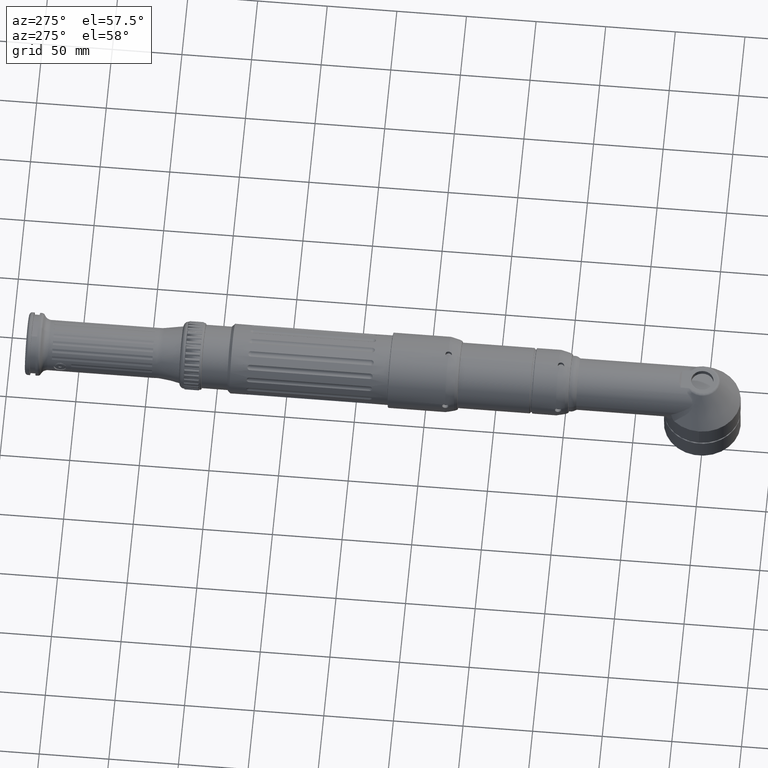
[diagram: clean part render]
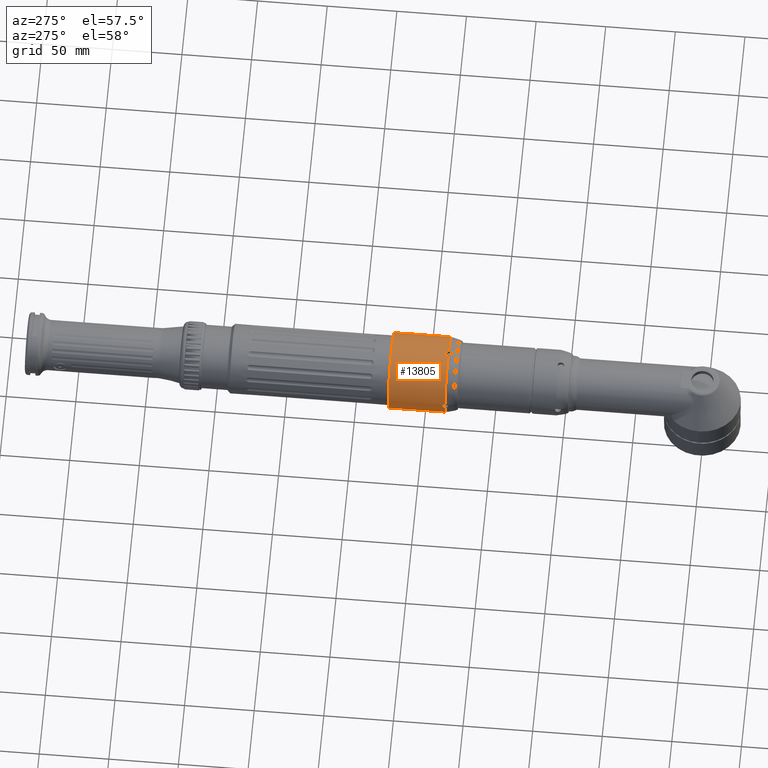
[diagram: same view with one face highlighted and labeled with its STEP entity id]
A machine part, auxiliary view. The second image highlights one B-rep face of the part: STEP entity #13805.
In plain terms, the highlighted cylindrical surface (bore or boss wall) has radius 27 mm, axis along (0, 1, -0).
Its self-contained STEP definition (entity closure, byte-faithful):
#1785=CYLINDRICAL_SURFACE('',#15489,27.);
#2100=FACE_BOUND('',#4450,.T.);
#3383=FACE_OUTER_BOUND('',#4449,.T.);
#4449=EDGE_LOOP('',(#11644));
#4450=EDGE_LOOP('',(#11645,#11646,#11647,#11648,#11649,#11650,#11651,#11652,
#11653,#11654,#11655,#11656));
#5336=CIRCLE('',#15478,27.);
#5342=CIRCLE('',#15490,27.);
#5343=CIRCLE('',#15491,27.);
#5344=CIRCLE('',#15492,27.);
#5345=CIRCLE('',#15493,27.);
#5502=B_SPLINE_CURVE_WITH_KNOTS('',3,(#25416,#25417,#25418,#25419,#25420,
#25421,#25422,#25423,#25424,#25425),.UNSPECIFIED.,.F.,.F.,(4,2,2,2,4),(1.04019628971994,
1.12687923638127,1.21356218304259,1.30024528466792,1.36848005378065),
 .UNSPECIFIED.);
#5503=B_SPLINE_CURVE_WITH_KNOTS('',3,(#25427,#25428,#25429,#25430,#25431,
#25432,#25433,#25434,#25435,#25436),.UNSPECIFIED.,.F.,.F.,(4,2,2,2,4),(0.711912525659239,
0.780147294771962,0.866830396397295,0.953513343058619,1.04019628971994),
 .UNSPECIFIED.);
#5505=B_SPLINE_CURVE_WITH_KNOTS('',3,(#25464,#25465,#25466,#25467,#25468,
#25469,#25470,#25471,#25472,#25473),.UNSPECIFIED.,.F.,.F.,(4,2,2,2,4),(1.04019628971994,
1.12687923638127,1.21356218304259,1.30024528466792,1.36848005378065),
 .UNSPECIFIED.);
#5506=B_SPLINE_CURVE_WITH_KNOTS('',3,(#25477,#25478,#25479,#25480,#25481,
#25482,#25483,#25484,#25485,#25486),.UNSPECIFIED.,.F.,.F.,(4,2,2,2,4),(0.711912525659239,
0.780147294771962,0.866830396397295,0.953513343058619,1.04019628971994),
 .UNSPECIFIED.);
#5507=B_SPLINE_CURVE_WITH_KNOTS('',3,(#25488,#25489,#25490,#25491,#25492,
#25493,#25494,#25495,#25496,#25497),.UNSPECIFIED.,.F.,.F.,(4,2,2,2,4),(1.04019628971994,
1.12687923638127,1.21356218304259,1.30024528466792,1.36848005378065),
 .UNSPECIFIED.);
#5508=B_SPLINE_CURVE_WITH_KNOTS('',3,(#25501,#25502,#25503,#25504,#25505,
#25506,#25507,#25508,#25509,#25510),.UNSPECIFIED.,.F.,.F.,(4,2,2,2,4),(0.711912525659239,
0.780147294771962,0.866830396397295,0.953513343058619,1.04019628971994),
 .UNSPECIFIED.);
#5509=B_SPLINE_CURVE_WITH_KNOTS('',3,(#25512,#25513,#25514,#25515,#25516,
#25517,#25518,#25519,#25520,#25521),.UNSPECIFIED.,.F.,.F.,(4,2,2,2,4),(1.04019628971994,
1.12687923638127,1.21356218304259,1.30024528466792,1.36848005378065),
 .UNSPECIFIED.);
#5510=B_SPLINE_CURVE_WITH_KNOTS('',3,(#25525,#25526,#25527,#25528,#25529,
#25530,#25531,#25532,#25533,#25534),.UNSPECIFIED.,.F.,.F.,(4,2,2,2,4),(0.711912525659239,
0.780147294771962,0.866830396397295,0.953513343058619,1.04019628971994),
 .UNSPECIFIED.);
#6655=VERTEX_POINT('',#25397);
#6661=VERTEX_POINT('',#25414);
#6662=VERTEX_POINT('',#25415);
#6663=VERTEX_POINT('',#25426);
#6664=VERTEX_POINT('',#25462);
#6665=VERTEX_POINT('',#25463);
#6666=VERTEX_POINT('',#25474);
#6667=VERTEX_POINT('',#25476);
#6668=VERTEX_POINT('',#25487);
#6669=VERTEX_POINT('',#25498);
#6670=VERTEX_POINT('',#25500);
#6671=VERTEX_POINT('',#25511);
#6672=VERTEX_POINT('',#25523);
#8381=EDGE_CURVE('',#6655,#6655,#5336,.T.);
#8387=EDGE_CURVE('',#6661,#6662,#5502,.T.);
#8388=EDGE_CURVE('',#6663,#6661,#5503,.T.);
#8390=EDGE_CURVE('',#6664,#6665,#5505,.T.);
#8391=EDGE_CURVE('',#6666,#6665,#5342,.T.);
#8392=EDGE_CURVE('',#6666,#6667,#5506,.T.);
#8393=EDGE_CURVE('',#6667,#6668,#5507,.T.);
#8394=EDGE_CURVE('',#6669,#6668,#5343,.T.);
#8395=EDGE_CURVE('',#6669,#6670,#5508,.T.);
#8396=EDGE_CURVE('',#6670,#6671,#5509,.T.);
#8397=EDGE_CURVE('',#6663,#6671,#5344,.T.);
#8398=EDGE_CURVE('',#6672,#6662,#5345,.T.);
#8399=EDGE_CURVE('',#6672,#6664,#5510,.T.);
#11644=ORIENTED_EDGE('',*,*,#8381,.F.);
#11645=ORIENTED_EDGE('',*,*,#8390,.T.);
#11646=ORIENTED_EDGE('',*,*,#8391,.F.);
#11647=ORIENTED_EDGE('',*,*,#8392,.T.);
#11648=ORIENTED_EDGE('',*,*,#8393,.T.);
#11649=ORIENTED_EDGE('',*,*,#8394,.F.);
#11650=ORIENTED_EDGE('',*,*,#8395,.T.);
#11651=ORIENTED_EDGE('',*,*,#8396,.T.);
#11652=ORIENTED_EDGE('',*,*,#8397,.F.);
#11653=ORIENTED_EDGE('',*,*,#8388,.T.);
#11654=ORIENTED_EDGE('',*,*,#8387,.T.);
#11655=ORIENTED_EDGE('',*,*,#8398,.F.);
#11656=ORIENTED_EDGE('',*,*,#8399,.T.);
#13805=ADVANCED_FACE('',(#3383,#2100),#1785,.T.);
#15478=AXIS2_PLACEMENT_3D('',#25398,#19399,#19400);
#15489=AXIS2_PLACEMENT_3D('',#25461,#19421,#19422);
#15490=AXIS2_PLACEMENT_3D('',#25475,#19423,#19424);
#15491=AXIS2_PLACEMENT_3D('',#25499,#19425,#19426);
#15492=AXIS2_PLACEMENT_3D('',#25522,#19427,#19428);
#15493=AXIS2_PLACEMENT_3D('',#25524,#19429,#19430);
#19399=DIRECTION('center_axis',(2.53937745722183E-17,1.,-1.13142302886376E-16));
#19400=DIRECTION('ref_axis',(6.12323399573677E-17,-1.13142302886376E-16,
-1.));
#19421=DIRECTION('center_axis',(2.53937745722183E-17,1.,-1.13142302886376E-16));
#19422=DIRECTION('ref_axis',(0.,1.13142302886376E-16,1.));
#19423=DIRECTION('center_axis',(-2.53937745722183E-17,-1.,1.13142302886376E-16));
#19424=DIRECTION('ref_axis',(6.12323399573677E-17,-1.13142302886376E-16,
-1.));
#19425=DIRECTION('center_axis',(-2.53937745722183E-17,-1.,1.13142302886376E-16));
#19426=DIRECTION('ref_axis',(6.12323399573677E-17,-1.13142302886376E-16,
-1.));
#19427=DIRECTION('center_axis',(-2.53937745722183E-17,-1.,1.13142302886376E-16));
#19428=DIRECTION('ref_axis',(6.12323399573677E-17,-1.13142302886376E-16,
-1.));
#19429=DIRECTION('center_axis',(-2.53937745722183E-17,-1.,1.13142302886376E-16));
#19430=DIRECTION('ref_axis',(6.12323399573677E-17,-1.13142302886376E-16,
-1.));
#25397=CARTESIAN_POINT('',(5.11700624122211E-14,223.25,26.9999999999999));
#25398=CARTESIAN_POINT('Origin',(4.95167892333722E-14,223.25,-1.52474396687858E-13));
#25414=CARTESIAN_POINT('',(4.85340501574273E-14,184.55,26.9999999999999));
#25415=CARTESIAN_POINT('',(2.29241093045698,182.436687240918,26.9025064283221));
#25416=CARTESIAN_POINT('Ctrl Pts',(4.73926453636864E-14,184.55,26.9999999999999));
#25417=CARTESIAN_POINT('Ctrl Pts',(0.288943155537794,184.55,26.9999999999999));
#25418=CARTESIAN_POINT('Ctrl Pts',(0.59705050134037,184.492225988517,26.9948862547708));
#25419=CARTESIAN_POINT('Ctrl Pts',(1.16368188537104,184.257458877727,26.9764007547341));
#25420=CARTESIAN_POINT('Ctrl Pts',(1.42221767898664,184.080473514471,26.9632920247862));
#25421=CARTESIAN_POINT('Ctrl Pts',(1.83047387939319,183.672217314065,26.9386559699386));
#25422=CARTESIAN_POINT('Ctrl Pts',(2.00745895932605,183.413681681489,26.9255264247118));
#25423=CARTESIAN_POINT('Ctrl Pts',(2.21724372027053,182.907347441857,26.9089654485857));
#25424=CARTESIAN_POINT('Ctrl Pts',(2.27348944271254,182.669032124867,26.9041187623045));
#25425=CARTESIAN_POINT('Ctrl Pts',(2.29241093045699,182.436687240918,26.9025064283221));
#25426=CARTESIAN_POINT('',(-2.29241093045688,182.436687240918,26.9025064283221));
#25427=CARTESIAN_POINT('Ctrl Pts',(-2.29241093045689,182.436687240918,26.9025064283221));
#25428=CARTESIAN_POINT('Ctrl Pts',(-2.27348944271244,182.669032124867,26.9041187623045));
#25429=CARTESIAN_POINT('Ctrl Pts',(-2.21724372027043,182.907347441857,26.9089654485857));
#25430=CARTESIAN_POINT('Ctrl Pts',(-2.00745895932596,183.413681681489,26.9255264247118));
#25431=CARTESIAN_POINT('Ctrl Pts',(-1.83047387939309,183.672217314065,26.9386559699386));
#25432=CARTESIAN_POINT('Ctrl Pts',(-1.42221767898654,184.080473514471,26.9632920247862));
#25433=CARTESIAN_POINT('Ctrl Pts',(-1.16368188537094,184.257458877727,26.9764007547341));
#25434=CARTESIAN_POINT('Ctrl Pts',(-0.597050501340273,184.492225988517,
26.9948862547708));
#25435=CARTESIAN_POINT('Ctrl Pts',(-0.288943155537699,184.55,26.9999999999999));
#25436=CARTESIAN_POINT('Ctrl Pts',(4.82947015711943E-14,184.55,26.9999999999999));
#25461=CARTESIAN_POINT('Origin',(4.89627131629878E-14,201.430633650637,
-1.50005703331569E-13));
#25462=CARTESIAN_POINT('',(27.,184.55,-1.53055609102702E-13));
#25463=CARTESIAN_POINT('',(26.9025064283223,182.436687240918,-2.29241093045709));
#25464=CARTESIAN_POINT('Ctrl Pts',(27.,184.55,-1.5182299861749E-13));
#25465=CARTESIAN_POINT('Ctrl Pts',(27.,184.55,-0.288943155537899));
#25466=CARTESIAN_POINT('Ctrl Pts',(26.994886254771,184.492225988517,-0.597050501340475));
#25467=CARTESIAN_POINT('Ctrl Pts',(26.9764007547343,184.257458877727,-1.16368188537115));
#25468=CARTESIAN_POINT('Ctrl Pts',(26.9632920247864,184.080473514471,-1.42221767898674));
#25469=CARTESIAN_POINT('Ctrl Pts',(26.9386559699387,183.672217314065,-1.83047387939329));
#25470=CARTESIAN_POINT('Ctrl Pts',(26.925526424712,183.413681681489,-2.00745895932616));
#25471=CARTESIAN_POINT('Ctrl Pts',(26.9089654485859,182.907347441857,-2.21724372027063));
#25472=CARTESIAN_POINT('Ctrl Pts',(26.9041187623047,182.669032124867,-2.27348944271264));
#25473=CARTESIAN_POINT('Ctrl Pts',(26.9025064283223,182.436687240918,-2.29241093045709));
#25474=CARTESIAN_POINT('',(2.29241093045698,182.436687240918,-26.9025064283224));
#25475=CARTESIAN_POINT('Origin',(4.84803851696226E-14,182.436687240918,
-1.47856684493873E-13));
#25476=CARTESIAN_POINT('',(4.52275037997295E-14,184.55,-27.0000000000001));
#25477=CARTESIAN_POINT('Ctrl Pts',(2.29241093045698,182.436687240918,-26.9025064283224));
#25478=CARTESIAN_POINT('Ctrl Pts',(2.27348944271254,182.669032124867,-26.9041187623048));
#25479=CARTESIAN_POINT('Ctrl Pts',(2.21724372027052,182.907347441857,-26.908965448586));
#25480=CARTESIAN_POINT('Ctrl Pts',(2.00745895932605,183.413681681489,-26.9255264247121));
#25481=CARTESIAN_POINT('Ctrl Pts',(1.83047387939318,183.672217314065,-26.9386559699388));
#25482=CARTESIAN_POINT('Ctrl Pts',(1.42221767898664,184.080473514471,-26.9632920247865));
#25483=CARTESIAN_POINT('Ctrl Pts',(1.16368188537104,184.257458877727,-26.9764007547344));
#25484=CARTESIAN_POINT('Ctrl Pts',(0.597050501340367,184.492225988517,-26.9948862547711));
#25485=CARTESIAN_POINT('Ctrl Pts',(0.288943155537792,184.55,-27.0000000000001));
#25486=CARTESIAN_POINT('Ctrl Pts',(4.51721993144361E-14,184.55,-27.0000000000001));
#25487=CARTESIAN_POINT('',(-2.29241093045688,182.436687240918,-26.9025064283224));
#25488=CARTESIAN_POINT('Ctrl Pts',(4.47558656802016E-14,184.55,-27.0000000000001));
#25489=CARTESIAN_POINT('Ctrl Pts',(-0.288943155537702,184.55,-27.0000000000001));
#25490=CARTESIAN_POINT('Ctrl Pts',(-0.597050501340276,184.492225988517,
-26.9948862547711));
#25491=CARTESIAN_POINT('Ctrl Pts',(-1.16368188537095,184.257458877727,-26.9764007547344));
#25492=CARTESIAN_POINT('Ctrl Pts',(-1.42221767898655,184.080473514471,-26.9632920247865));
#25493=CARTESIAN_POINT('Ctrl Pts',(-1.83047387939309,183.672217314065,-26.9386559699388));
#25494=CARTESIAN_POINT('Ctrl Pts',(-2.00745895932596,183.413681681489,-26.9255264247121));
#25495=CARTESIAN_POINT('Ctrl Pts',(-2.21724372027043,182.907347441857,-26.908965448586));
#25496=CARTESIAN_POINT('Ctrl Pts',(-2.27348944271245,182.669032124867,-26.9041187623048));
#25497=CARTESIAN_POINT('Ctrl Pts',(-2.29241093045689,182.436687240918,-26.9025064283224));
#25498=CARTESIAN_POINT('',(-26.9025064283222,182.436687240918,-2.29241093045708));
#25499=CARTESIAN_POINT('Origin',(4.84803851696226E-14,182.436687240918,
-1.47856684493873E-13));
#25500=CARTESIAN_POINT('',(-27.,184.55,-1.46442516387306E-13));
#25501=CARTESIAN_POINT('Ctrl Pts',(-26.9025064283222,182.436687240918,-2.29241093045708));
#25502=CARTESIAN_POINT('Ctrl Pts',(-26.9041187623046,182.669032124867,-2.27348944271264));
#25503=CARTESIAN_POINT('Ctrl Pts',(-26.9089654485858,182.907347441857,-2.21724372027063));
#25504=CARTESIAN_POINT('Ctrl Pts',(-26.9255264247119,183.413681681489,-2.00745895932615));
#25505=CARTESIAN_POINT('Ctrl Pts',(-26.9386559699386,183.672217314065,-1.83047387939328));
#25506=CARTESIAN_POINT('Ctrl Pts',(-26.9632920247863,184.080473514471,-1.42221767898674));
#25507=CARTESIAN_POINT('Ctrl Pts',(-26.9764007547342,184.257458877727,-1.16368188537114));
#25508=CARTESIAN_POINT('Ctrl Pts',(-26.9948862547709,184.492225988517,-0.597050501340468));
#25509=CARTESIAN_POINT('Ctrl Pts',(-27.,184.55,-0.288943155537894));
#25510=CARTESIAN_POINT('Ctrl Pts',(-27.,184.55,-1.47104550762833E-13));
#25511=CARTESIAN_POINT('',(-26.9025064283222,182.436687240918,2.29241093045679));
#25512=CARTESIAN_POINT('Ctrl Pts',(-27.,184.55,-1.4731271757995E-13));
#25513=CARTESIAN_POINT('Ctrl Pts',(-27.,184.55,0.2889431555376));
#25514=CARTESIAN_POINT('Ctrl Pts',(-26.9948862547709,184.492225988517,0.597050501340175));
#25515=CARTESIAN_POINT('Ctrl Pts',(-26.9764007547342,184.257458877727,1.16368188537085));
#25516=CARTESIAN_POINT('Ctrl Pts',(-26.9632920247863,184.080473514471,1.42221767898644));
#25517=CARTESIAN_POINT('Ctrl Pts',(-26.9386559699386,183.672217314065,1.83047387939299));
#25518=CARTESIAN_POINT('Ctrl Pts',(-26.9255264247119,183.413681681489,2.00745895932586));
#25519=CARTESIAN_POINT('Ctrl Pts',(-26.9089654485858,182.907347441857,2.21724372027033));
#25520=CARTESIAN_POINT('Ctrl Pts',(-26.9041187623046,182.669032124867,2.27348944271235));
#25521=CARTESIAN_POINT('Ctrl Pts',(-26.9025064283222,182.436687240918,2.29241093045679));
#25522=CARTESIAN_POINT('Origin',(4.84803851696226E-14,182.436687240918,
-1.47856684493873E-13));
#25523=CARTESIAN_POINT('',(26.9025064283223,182.436687240918,2.29241093045678));
#25524=CARTESIAN_POINT('Origin',(4.84803851696226E-14,182.436687240918,
-1.47856684493873E-13));
#25525=CARTESIAN_POINT('Ctrl Pts',(26.9025064283223,182.436687240918,2.29241093045678));
#25526=CARTESIAN_POINT('Ctrl Pts',(26.9041187623047,182.669032124867,2.27348944271234));
#25527=CARTESIAN_POINT('Ctrl Pts',(26.9089654485859,182.907347441857,2.21724372027033));
#25528=CARTESIAN_POINT('Ctrl Pts',(26.925526424712,183.413681681489,2.00745895932585));
#25529=CARTESIAN_POINT('Ctrl Pts',(26.9386559699387,183.672217314065,1.83047387939299));
#25530=CARTESIAN_POINT('Ctrl Pts',(26.9632920247864,184.080473514471,1.42221767898644));
#25531=CARTESIAN_POINT('Ctrl Pts',(26.9764007547343,184.257458877727,1.16368188537084));
#25532=CARTESIAN_POINT('Ctrl Pts',(26.994886254771,184.492225988517,0.597050501340169));
#25533=CARTESIAN_POINT('Ctrl Pts',(27.,184.55,0.288943155537594));
#25534=CARTESIAN_POINT('Ctrl Pts',(27.,184.55,-1.52933221642115E-13));